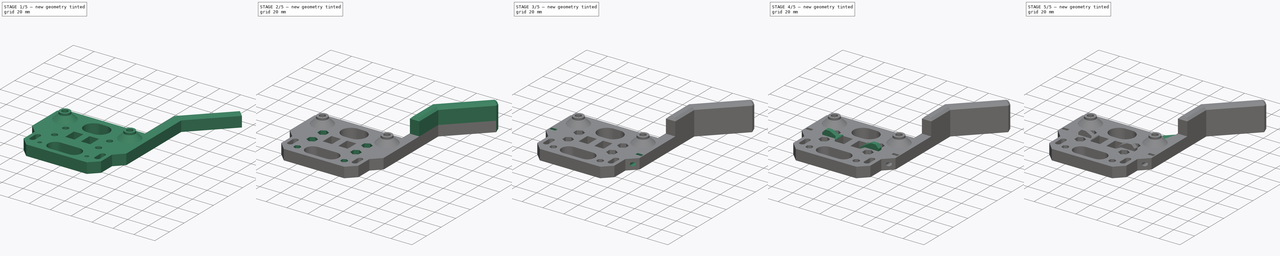
[diagram: build sequence overview — one tinted view per stage of 5, left to right]
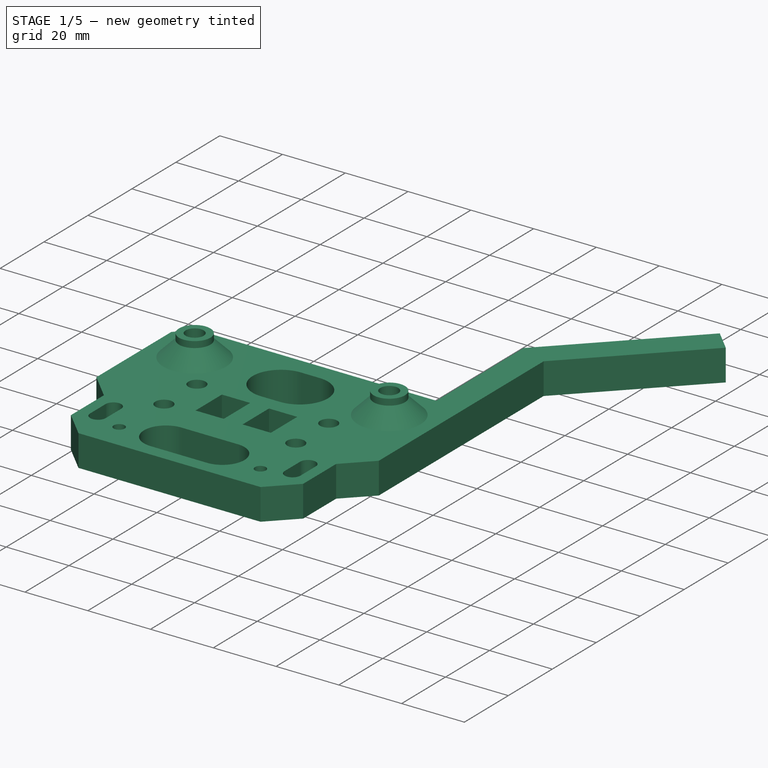
[diagram: stage 1 of 5 — iso view after this stage's code; geometry added in this stage tinted green]
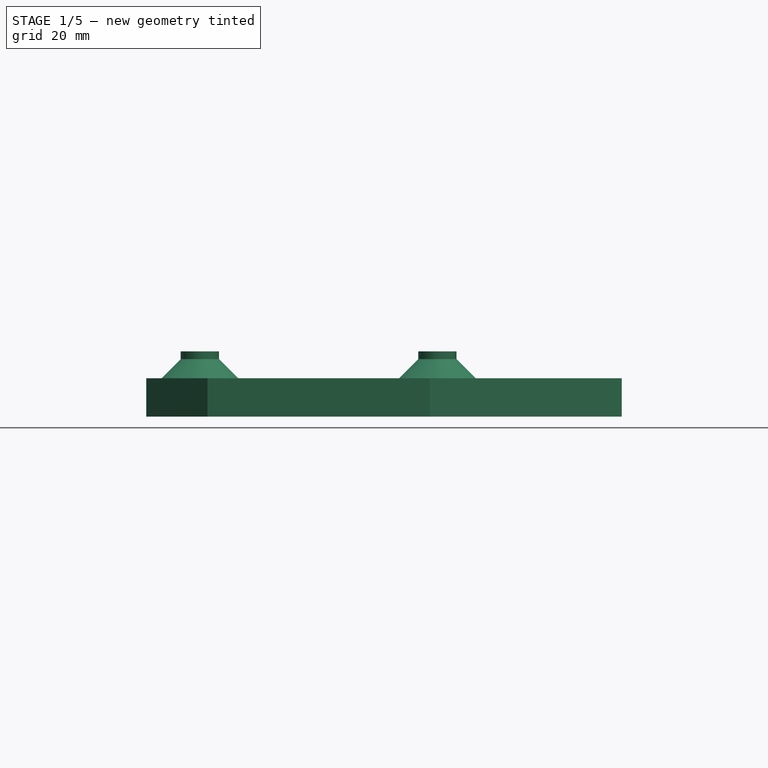
[diagram: stage 1 of 5 — front view after this stage's code; geometry added in this stage tinted green]
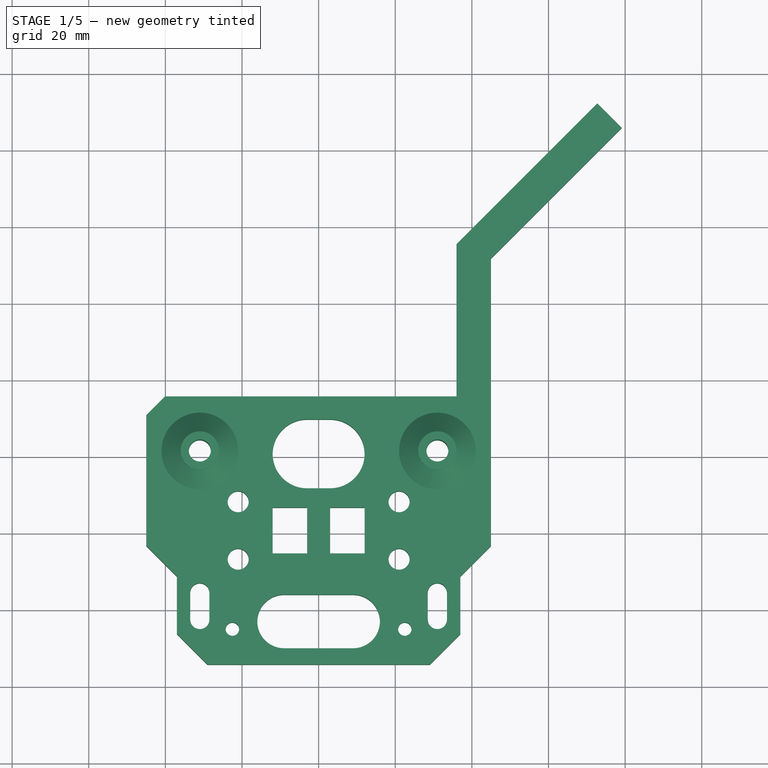
[diagram: stage 1 of 5 — top view after this stage's code; geometry added in this stage tinted green]
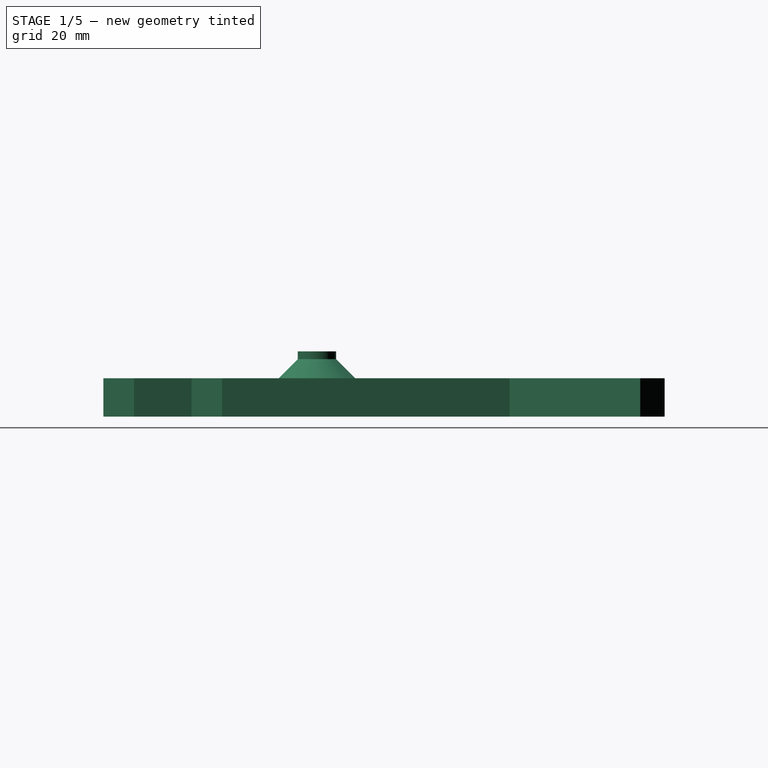
[diagram: stage 1 of 5 — right view after this stage's code; geometry added in this stage tinted green]
FCSTD DOCUMENT  (FreeCAD 0.19R24291 (Git))
Label: FDM-0012_x-gantry-back
License: All rights reserved
LicenseURL: http://en.wikipedia.org/wiki/All_rights_reserved
objects: Sketcher::SketchObject×11, PartDesign::Pocket×7, PartDesign::Chamfer×6, PartDesign::Plane×5, PartDesign::Pad×4, PartDesign::Fillet×2, Part::Part2DObjectPython×1, PartDesign::Hole×1, PartDesign::Body×1
note: 58 computed .brp shape members not serialized (recipe doc carries the construction recipe); baked Part::Feature solids carry a one-line shape summary decoded from their .brp

FEATURE [Sketcher::SketchObject] Sketch  label="Base"
  FullyConstrained = true
  MapMode = 5
  Support = -> [XY_Plane]
  sketch-geometry (57):
    g0: LineSegment StartX=0 StartY=0 StartZ=0 EndX=0 EndY=41.5 EndZ=0
    g1: LineSegment StartX=-31 StartY=41.5 StartZ=0 EndX=31 EndY=41.5 EndZ=0
    g2: Circle CenterX=-31 CenterY=41.5 CenterZ=0 NormalX=0 NormalY=0 NormalZ=1 AngleXU=0 Radius=2.875
    g3: Circle CenterX=31 CenterY=41.5 CenterZ=0 NormalX=0 NormalY=0 NormalZ=1 AngleXU=0 Radius=2.875
    g4: ArcOfCircle CenterX=-31 CenterY=4.5 CenterZ=0 NormalX=0 NormalY=0 NormalZ=1 AngleXU=0 Radius=2.5 StartAngle=-9e-16 EndAngle=3.14159
    g5: ArcOfCircle CenterX=-31 CenterY=-2.5 CenterZ=0 NormalX=0 NormalY=0 NormalZ=1 AngleXU=0 Radius=2.5 StartAngle=3.14159 EndAngle=6.28319
    g6: LineSegment StartX=-33.5 StartY=4.5 StartZ=0 EndX=-33.5 EndY=-2.5 EndZ=0
    g7: LineSegment StartX=-28.5 StartY=4.5 StartZ=0 EndX=-28.5 EndY=-2.5 EndZ=0
    g8: Circle CenterX=-31 CenterY=41.5 CenterZ=0 NormalX=0 NormalY=0 NormalZ=1 AngleXU=0 Radius=12.5
    g9: Circle CenterX=31 CenterY=41.5 CenterZ=0 NormalX=0 NormalY=0 NormalZ=1 AngleXU=0 Radius=12.5
    g10: LineSegment StartX=-45 StartY=55.75 StartZ=0 EndX=45 EndY=55.75 EndZ=0
    g11: LineSegment StartX=45 StartY=55.75 StartZ=0 EndX=45 EndY=16.75 EndZ=0
    g12: LineSegment StartX=-45 StartY=16.75 StartZ=0 EndX=-45 EndY=55.75 EndZ=0
    g13: LineSegment StartX=-21 StartY=28.25 StartZ=0 EndX=-21 EndY=13.25 EndZ=0
    g14: LineSegment StartX=-12 StartY=26.75 StartZ=0 EndX=-3 EndY=26.75 EndZ=0
    g15: LineSegment StartX=-3 StartY=26.75 StartZ=0 EndX=-3 EndY=14.75 EndZ=0
    g16: LineSegment StartX=-3 StartY=14.75 StartZ=0 EndX=-12 EndY=14.75 EndZ=0
    g17: LineSegment StartX=-12 StartY=14.75 StartZ=0 EndX=-12 EndY=26.75 EndZ=0
    g18: Circle CenterX=-21 CenterY=28.25 CenterZ=0 NormalX=0 NormalY=0 NormalZ=1 AngleXU=0 Radius=2.75
    g19: Circle CenterX=-21 CenterY=13.25 CenterZ=0 NormalX=0 NormalY=0 NormalZ=1 AngleXU=0 Radius=2.75
    g20: LineSegment StartX=-21 StartY=20.75 StartZ=0 EndX=21 EndY=20.75 EndZ=0
    g21: LineSegment StartX=21 StartY=28.25 StartZ=0 EndX=21 EndY=13.25 EndZ=0
    g22: Circle CenterX=21 CenterY=28.25 CenterZ=0 NormalX=0 NormalY=0 NormalZ=1 AngleXU=0 Radius=2.75
    g23: Circle CenterX=21 CenterY=13.25 CenterZ=0 NormalX=0 NormalY=0 NormalZ=1 AngleXU=0 Radius=2.75
    g24: LineSegment StartX=3 StartY=26.75 StartZ=0 EndX=12 EndY=26.75 EndZ=0
    g25: LineSegment StartX=12 StartY=26.75 StartZ=0 EndX=12 EndY=14.75 EndZ=0
    g26: LineSegment StartX=12 StartY=14.75 StartZ=0 EndX=3 EndY=14.75 EndZ=0
    g27: LineSegment StartX=3 StartY=14.75 StartZ=0 EndX=3 EndY=26.75 EndZ=0
    g28: LineSegment StartX=-22.5 StartY=-5 StartZ=0 EndX=22.5 EndY=-5 EndZ=0
    g29: Circle CenterX=-22.5 CenterY=-5 CenterZ=0 NormalX=0 NormalY=0 NormalZ=1 AngleXU=0 Radius=1.75
    g30: Circle CenterX=22.5 CenterY=-5 CenterZ=0 NormalX=0 NormalY=0 NormalZ=1 AngleXU=0 Radius=1.75
    g31: LineSegment StartX=45 StartY=55.75 StartZ=0 EndX=45 EndY=16.75 EndZ=0
    g32: ArcOfCircle CenterX=31 CenterY=4.5 CenterZ=0 NormalX=0 NormalY=0 NormalZ=1 AngleXU=0 Radius=2.5 StartAngle=0 EndAngle=3.14159
    g33: ArcOfCircle CenterX=31 CenterY=-2.5 CenterZ=0 NormalX=0 NormalY=0 NormalZ=1 AngleXU=0 Radius=2.5 StartAngle=3.14159 EndAngle=6.28319
    g34: LineSegment StartX=28.5 StartY=4.5 StartZ=0 EndX=28.5 EndY=-2.5 EndZ=0
    g35: LineSegment StartX=33.5 StartY=4.5 StartZ=0 EndX=33.5 EndY=-2.5 EndZ=0
    g36: LineSegment StartX=37 StartY=8.75 StartZ=0 EndX=37 EndY=-6.25 EndZ=0
    g37: LineSegment StartX=37 StartY=-6.25 StartZ=0 EndX=29 EndY=-14.25 EndZ=0
    g38: LineSegment StartX=-29 StartY=-14.25 StartZ=0 EndX=-37 EndY=-6.25 EndZ=0
    g39: LineSegment StartX=-37 StartY=-6.25 StartZ=0 EndX=-37 EndY=8.75 EndZ=0
    g40: LineSegment StartX=-37 StartY=8.75 StartZ=0 EndX=-45 EndY=16.75 EndZ=0
    g41: LineSegment StartX=37 StartY=8.75 StartZ=0 EndX=45 EndY=16.75 EndZ=0
    g42: LineSegment StartX=-29 StartY=-14.25 StartZ=0 EndX=29 EndY=-14.25 EndZ=0
    g43: ArcOfCircle CenterX=-9 CenterY=-3 CenterZ=0 NormalX=0 NormalY=0 NormalZ=1 AngleXU=0 Radius=7 StartAngle=1.5708 EndAngle=4.71239
    g44: ArcOfCircle CenterX=9 CenterY=-3 CenterZ=0 NormalX=0 NormalY=0 NormalZ=1 AngleXU=0 Radius=7 StartAngle=4.71239 EndAngle=7.85398
    g45: LineSegment StartX=-9 StartY=-10 StartZ=0 EndX=9 EndY=-10 EndZ=0
    g46: LineSegment StartX=-9 StartY=4 StartZ=0 EndX=9 EndY=4 EndZ=0
    g47: ArcOfCircle CenterX=-3 CenterY=40.75 CenterZ=0 NormalX=0 NormalY=0 NormalZ=1 AngleXU=0 Radius=9 StartAngle=1.5708 EndAngle=4.71239
    g48: ArcOfCircle CenterX=3 CenterY=40.75 CenterZ=0 NormalX=0 NormalY=0 NormalZ=1 AngleXU=0 Radius=9 StartAngle=4.71239 EndAngle=7.85398
    g49: LineSegment StartX=-3 StartY=31.75 StartZ=0 EndX=3 EndY=31.75 EndZ=0
    g50: LineSegment StartX=-3 StartY=49.75 StartZ=0 EndX=3 EndY=49.75 EndZ=0
    g51: LineSegment StartX=36 StartY=55.75 StartZ=0 EndX=36 EndY=95.4779 EndZ=0
    g52: LineSegment StartX=36 StartY=95.4779 StartZ=0 EndX=72.7696 EndY=132.247 EndZ=0
    g53: LineSegment StartX=72.7696 StartY=132.247 StartZ=0 EndX=79.1335 EndY=125.884 EndZ=0
    g54: LineSegment StartX=79.1335 StartY=125.884 StartZ=0 EndX=45 EndY=91.75 EndZ=0
    g55: LineSegment StartX=45 StartY=91.75 StartZ=0 EndX=45 EndY=55.75 EndZ=0
    g56: LineSegment StartX=36 StartY=55.75 StartZ=0 EndX=-45 EndY=55.75 EndZ=0
  constraints (147):
    c: Coincident(g0,g-1)
    c: PointOnObject(g0,g1)
    c: Symmetric(g1,g1,g0)
    c: DistanceY(g0,g0) = 41.5
    c: DistanceX(g1,g1) = 62
    c: Coincident(g2,g1)
    c: Coincident(g3,g1)
    c: Tangent(g4,g7)
    c: Tangent(g4,g6)
    c: Tangent(g6,g5)
    c: Tangent(g7,g5)
    c: Vertical(g6)
    c: Coincident(g8,g2)
    c: Coincident(g9,g3)
    c: Diameter(g4) = 5
    c: DistanceY(g5,g4) = 7
    c: Diameter(g3) = 5.75
    c: Diameter(g2) = 5.75
    c: Diameter(g9) = 25
    c: Diameter(g8) = 25
    c: Coincident(g10,g11)
    c: Vertical(g11)
    c: Coincident(g12,g10)
    c: Vertical(g12)
    c: Symmetric(g10,g10,g-2)
    c: Equal(g11,g12)
    c: DistanceX(g10,g10) = 90
    c: DistanceY(g3,g10) = 14.25
    c: DistanceY(g13,g13) = 15
    c: Coincident(g14,g15)
    c: Coincident(g15,g16)
    c: Coincident(g16,g17)
    c: Coincident(g17,g14)
    c: Horizontal(g14)
    c: Horizontal(g16)
    c: Vertical(g15)
    c: DistanceX(g14,g14) = 9
    c: DistanceY(g17,g17) = 12
    c: Coincident(g18,g13)
    c: Coincident(g19,g13)
    c: Diameter(g18) = 5.5
    c: Diameter(g19) = 5.5
    c: PointOnObject(g20,g13)
    c: Symmetric(g20,g20,g-2)
    c: Symmetric(g18,g19,g20)
    c: Symmetric(g14,g16,g20)
    c: PointOnObject(g20,g21)
    c: Symmetric(g21,g21,g20)
    c: DistanceY(g21,g21) = 15
    c: Coincident(g23,g21)
    c: Diameter(g22) = 5.5
    c: Diameter(g23) = 5.5
    c: Symmetric(g0,g-1,g20)
    c: Distance(g14,g0) = 3
    c: Distance(g18,g0) = 21
    c: Coincident(g24,g25)
    c: Coincident(g25,g26)
    c: Coincident(g26,g27)
    c: Coincident(g27,g24)
    c: Horizontal(g24)
    c: Horizontal(g26)
    c: Vertical(g25)
    c: DistanceX(g24,g24) = 9
    c: DistanceY(g27,g27) = 12
    c: DistanceX(g-1,g24) = 3
    c: Symmetric(g24,g26,g20)
    c: Symmetric(g28,g28,g-2)
    c: DistanceY(g28,g-1) = 5
    c: DistanceX(g28,g28) = 45
    c: Coincident(g29,g28)
    c: Coincident(g30,g28)
    c: Diameter(g30) = 3.5
    c: DistanceY(g0,g4) = 4.5
    c: Vertical(g5,g4)
    c: Vertical(g4,g2)
    c: Tangent(g32,g35)
    c: Tangent(g32,g34)
    c: Tangent(g34,g33)
    c: Tangent(g35,g33)
    c: Vertical(g34)
    c: Equal(g4,g32) = 5
    c: Vertical(g33,g32)
    c: Horizontal(g32,g4)
    c: Vertical(g32,g3)
    c: Horizontal(g33,g5)
    c: Vertical(g36)
    c: Coincident(g37,g36)
    c: Coincident(g39,g38)
    c: Vertical(g39)
    c: Coincident(g40,g39)
    c: Coincident(g41,g36)
    c: Horizontal(g41,g40)
    c: Horizontal(g36,g39)
    c: DistanceX(g39,g36) = 74
    c: DistanceY(g37,g31) = 70
    c: Coincident(g42,g38)
    c: Coincident(g42,g37)
    c: Horizontal(g42)
    c: Angle(g36,g37) = 2.35619
    c: Angle(g38,g39) = 2.35619
    c: Horizontal(g38,g36)
    c: Coincident(g40,g12)
    c: Coincident(g31,g41)
    c: Vertical(g31)
    c: Angle(g31,g41) = 2.35619
    c: Angle(g40,g12) = 2.35619
    c: DistanceY(g37,g36) = 8
    c: DistanceY(g36,g36) = 15
    c: Equal(g29,g30)
    c: Tangent(g43,g46) = 1.5708
    c: Tangent(g43,g45) = -1.5708
    c: Tangent(g45,g44) = -1.5708
    c: Tangent(g46,g44) = 1.5708
    c: Horizontal(g45)
    c: Symmetric(g43,g44,g0)
    c: Diameter(g44) = 14
    c: DistanceX(g46,g46) = 18
    c: DistanceY(g44,g0) = 3
    c: Vertical(g22,g23)
    c: Horizontal(g22,g18)
    c: Tangent(g47,g50) = 1.5708
    c: Tangent(g47,g49) = -1.5708
    c: Tangent(g49,g48) = -1.5708
    c: Tangent(g50,g48) = 1.5708
    c: Horizontal(g49)
    c: Symmetric(g47,g48,g-2)
    c: Vertical(g14,g47)
    c: Radius(g48) = 9
    c: DistanceY(g48,g31) = 6
    c: Coincident(g52,g51)
    c: Coincident(g53,g52)
    c: Coincident(g54,g53)
    c: Coincident(g55,g54)
    c: Vertical(g55)
    c: Distance(g53) = 9
    c: Perpendicular(g53,g52)
    c: Angle(g51,g52) = 2.35619
    c: Parallel(g54,g52)
    c: Distance(g52) = 52
    c: DistanceY(g55,g55) = 36
    c: Horizontal(g56)
    c: Vertical(g51)
    c: DistanceX(g51,g55) = 9
    c: Coincident(g56,g12)
    c: Coincident(g10,g31)
    c: Coincident(g31,g55)
    c: Coincident(g51,g56)
FEATURE [PartDesign::Pad] Pad
  AllowMultiFace = false
  Direction = (1,1,1)
  Length = 10
  Length2 = 100
  Profile = -> Sketch
  Refine = true
  Type = 0
FEATURE [PartDesign::Plane] DatumPlane
  Length = 60
  MapMode = 5
  Placement = pos=(0,0,10) rot=(0,0,1;0rad)
  ResizeMode = 0
  Support = -> [Pad]
  Width = 60
FEATURE [Sketcher::SketchObject] Sketch001  label="WheelSpacers"
  FullyConstrained = true
  MapMode = 5
  Placement = pos=(0,0,10) rot=(0,0,1;0rad)
  Support = -> [DatumPlane]
  sketch-geometry (4):
    g0: Circle CenterX=-31 CenterY=41.5 CenterZ=0 NormalX=0 NormalY=0 NormalZ=1 AngleXU=0 Radius=2.875
    g1: Circle CenterX=-31 CenterY=41.5 CenterZ=0 NormalX=0 NormalY=0 NormalZ=1 AngleXU=0 Radius=5
    g2: Circle CenterX=31 CenterY=41.5 CenterZ=0 NormalX=0 NormalY=0 NormalZ=1 AngleXU=0 Radius=2.875
    g3: Circle CenterX=31 CenterY=41.5 CenterZ=0 NormalX=0 NormalY=0 NormalZ=1 AngleXU=0 Radius=5
  constraints (10):
    c: Coincident(g1,g0)
    c: Coincident(g3,g2)
    c: Diameter(g2) = 5.75
    c: Diameter(g3) = 10
    c: Diameter(g0) = 5.75
    c: Diameter(g1) = 10
    c: DistanceX(g0,g-1) = 31
    c: DistanceX(g-1,g2) = 31
    c: DistanceY(g-1,g0) = 41.5
    c: DistanceY(g-1,g2) = 41.5
FEATURE [PartDesign::Pad] Pad001
  AllowMultiFace = false
  BaseFeature = -> Pad
  Direction = (1,1,1)
  Length = 7
  Length2 = 100
  Profile = -> Sketch001
  Refine = true
  Type = 0
FEATURE [PartDesign::Chamfer] Chamfer
  Angle = 45
  Base = -> Pad001 [Edge96,Edge86]
  BaseFeature = -> Pad001
  ChamferType = 0
  FlipDirection = false
  Size = 5
  Size2 = 1
  SupportTransform = false
FEATURE [PartDesign::Chamfer] Chamfer001
  Angle = 45
  Base = -> Chamfer [Edge62]
  BaseFeature = -> Chamfer
  ChamferType = 0
  FlipDirection = false
  Size = 4.9
  Size2 = 1
  SupportTransform = false
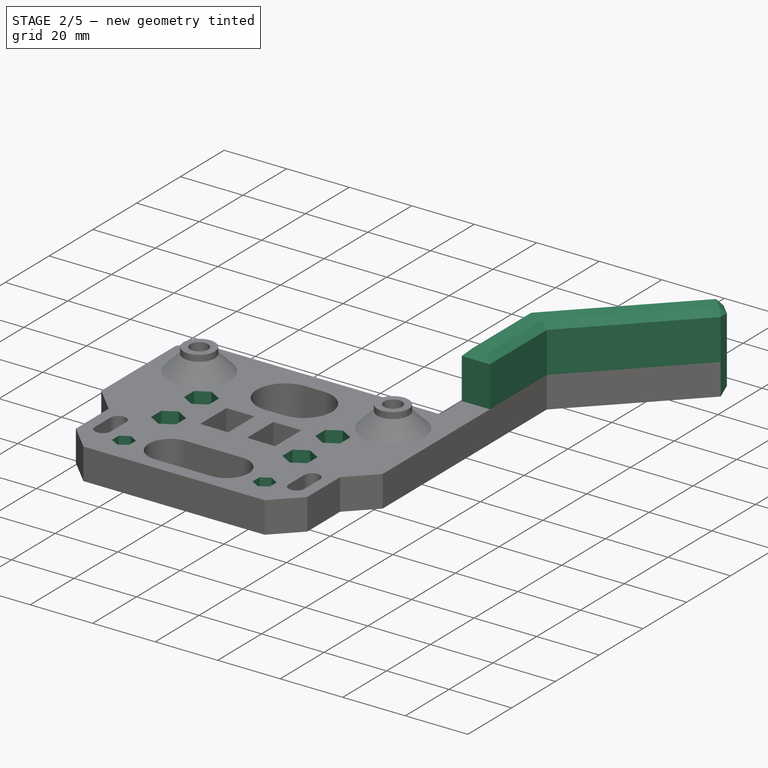
[diagram: stage 2 of 5 — iso view after this stage's code; geometry added in this stage tinted green]
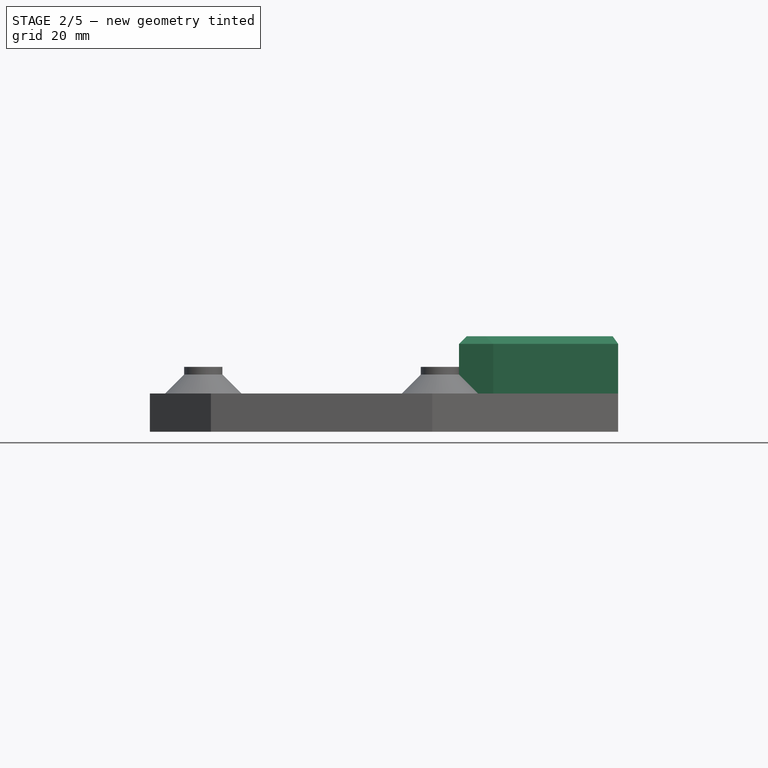
[diagram: stage 2 of 5 — front view after this stage's code; geometry added in this stage tinted green]
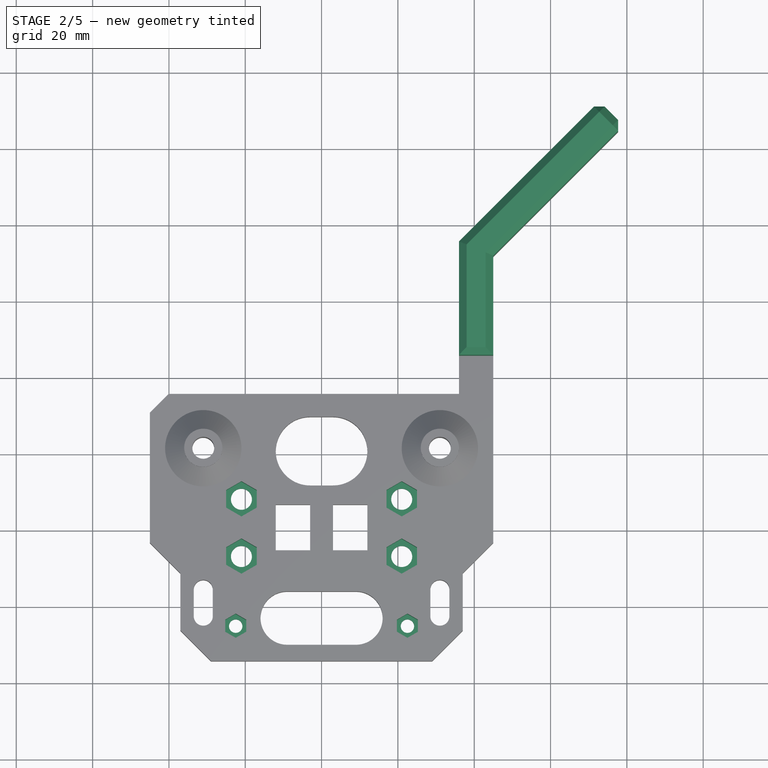
[diagram: stage 2 of 5 — top view after this stage's code; geometry added in this stage tinted green]
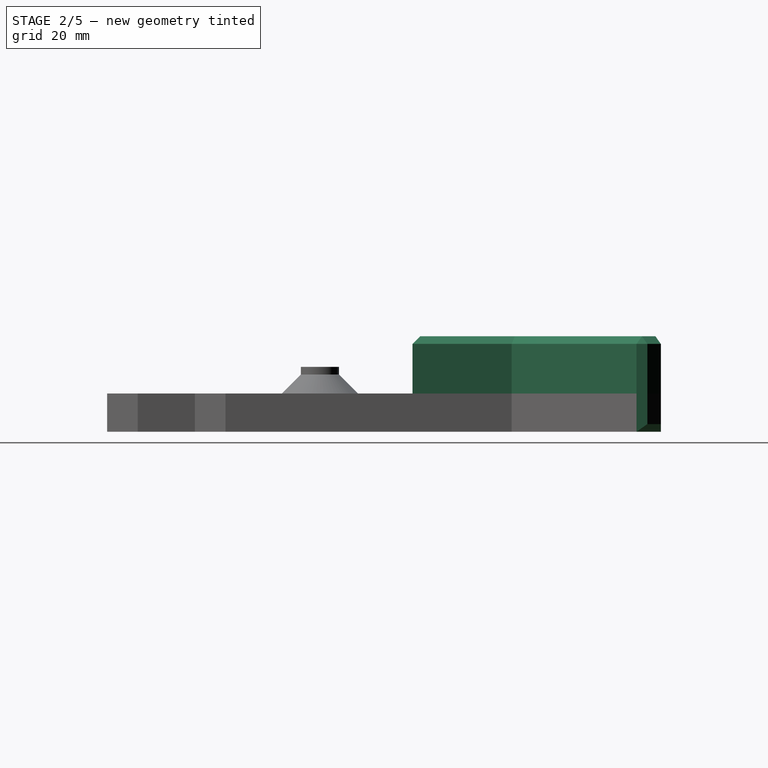
[diagram: stage 2 of 5 — right view after this stage's code; geometry added in this stage tinted green]
FEATURE [Sketcher::SketchObject] Sketch002  label="M5Nuts"
  FullyConstrained = true
  MapMode = 5
  Placement = pos=(0,0,10) rot=(0,0,1;0rad)
  Support = -> [DatumPlane]
  sketch-geometry (42):
    g0: LineSegment StartX=-17 StartY=25.9406 StartZ=0 EndX=-17 EndY=30.5594 EndZ=0
    g1: LineSegment StartX=-17 StartY=30.5594 StartZ=0 EndX=-21 EndY=32.8688 EndZ=0
    g2: LineSegment StartX=-21 StartY=32.8688 StartZ=0 EndX=-25 EndY=30.5594 EndZ=0
    g3: LineSegment StartX=-25 StartY=30.5594 StartZ=0 EndX=-25 EndY=25.9406 EndZ=0
    g4: LineSegment StartX=-25 StartY=25.9406 StartZ=0 EndX=-21 EndY=23.6312 EndZ=0
    g5: LineSegment StartX=-21 StartY=23.6312 StartZ=0 EndX=-17 EndY=25.9406 EndZ=0
    g6: Circle CenterX=-21 CenterY=28.25 CenterZ=0 NormalX=0 NormalY=0 NormalZ=1 AngleXU=0 Radius=4.6188
    g7: LineSegment StartX=-17 StartY=10.9406 StartZ=0 EndX=-17 EndY=15.5594 EndZ=0
    g8: LineSegment StartX=-17 StartY=15.5594 StartZ=0 EndX=-21 EndY=17.8688 EndZ=0
    g9: LineSegment StartX=-21 StartY=17.8688 StartZ=0 EndX=-25 EndY=15.5594 EndZ=0
    g10: LineSegment StartX=-25 StartY=15.5594 StartZ=0 EndX=-25 EndY=10.9406 EndZ=0
    g11: LineSegment StartX=-25 StartY=10.9406 StartZ=0 EndX=-21 EndY=8.6312 EndZ=0
    g12: LineSegment StartX=-21 StartY=8.6312 StartZ=0 EndX=-17 EndY=10.9406 EndZ=0
    g13: Circle CenterX=-21 CenterY=13.25 CenterZ=0 NormalX=0 NormalY=0 NormalZ=1 AngleXU=0 Radius=4.6188
    g14: LineSegment StartX=-19.75 StartY=-6.58771 StartZ=0 EndX=-19.75 EndY=-3.41229 EndZ=0
    g15: LineSegment StartX=-19.75 StartY=-3.41229 StartZ=0 EndX=-22.5 EndY=-1.82457 EndZ=0
    g16: LineSegment StartX=-22.5 StartY=-1.82457 StartZ=0 EndX=-25.25 EndY=-3.41229 EndZ=0
    g17: LineSegment StartX=-25.25 StartY=-3.41229 StartZ=0 EndX=-25.25 EndY=-6.58771 EndZ=0
    g18: LineSegment StartX=-25.25 StartY=-6.58771 StartZ=0 EndX=-22.5 EndY=-8.17543 EndZ=0
    g19: LineSegment StartX=-22.5 StartY=-8.17543 StartZ=0 EndX=-19.75 EndY=-6.58771 EndZ=0
    g20: Circle CenterX=-22.5 CenterY=-5 CenterZ=0 NormalX=0 NormalY=0 NormalZ=1 AngleXU=0 Radius=3.17543
    g21: LineSegment StartX=25.25 StartY=-6.58771 StartZ=0 EndX=25.25 EndY=-3.41229 EndZ=0
    g22: LineSegment StartX=25.25 StartY=-3.41229 StartZ=0 EndX=22.5 EndY=-1.82457 EndZ=0
    g23: LineSegment StartX=22.5 StartY=-1.82457 StartZ=0 EndX=19.75 EndY=-3.41229 EndZ=0
    g24: LineSegment StartX=19.75 StartY=-3.41229 StartZ=0 EndX=19.75 EndY=-6.58771 EndZ=0
    g25: LineSegment StartX=19.75 StartY=-6.58771 StartZ=0 EndX=22.5 EndY=-8.17543 EndZ=0
    g26: LineSegment StartX=22.5 StartY=-8.17543 StartZ=0 EndX=25.25 EndY=-6.58771 EndZ=0
    g27: Circle CenterX=22.5 CenterY=-5 CenterZ=0 NormalX=0 NormalY=0 NormalZ=1 AngleXU=0 Radius=3.17543
    g28: LineSegment StartX=25 StartY=10.9406 StartZ=0 EndX=25 EndY=15.5594 EndZ=0
    g29: LineSegment StartX=25 StartY=15.5594 StartZ=0 EndX=21 EndY=17.8688 EndZ=0
    g30: LineSegment StartX=21 StartY=17.8688 StartZ=0 EndX=17 EndY=15.5594 EndZ=0
    g31: LineSegment StartX=17 StartY=15.5594 StartZ=0 EndX=17 EndY=10.9406 EndZ=0
    g32: LineSegment StartX=17 StartY=10.9406 StartZ=0 EndX=21 EndY=8.6312 EndZ=0
    g33: LineSegment StartX=21 StartY=8.6312 StartZ=0 EndX=25 EndY=10.9406 EndZ=0
    g34: Circle CenterX=21 CenterY=13.25 CenterZ=0 NormalX=0 NormalY=0 NormalZ=1 AngleXU=0 Radius=4.6188
    g35: LineSegment StartX=25 StartY=25.9406 StartZ=0 EndX=25 EndY=30.5594 EndZ=0
    g36: LineSegment StartX=25 StartY=30.5594 StartZ=0 EndX=21 EndY=32.8688 EndZ=0
    g37: LineSegment StartX=21 StartY=32.8688 StartZ=0 EndX=17 EndY=30.5594 EndZ=0
    g38: LineSegment StartX=17 StartY=30.5594 StartZ=0 EndX=17 EndY=25.9406 EndZ=0
    g39: LineSegment StartX=17 StartY=25.9406 StartZ=0 EndX=21 EndY=23.6312 EndZ=0
    g40: LineSegment StartX=21 StartY=23.6312 StartZ=0 EndX=25 EndY=25.9406 EndZ=0
    g41: Circle CenterX=21 CenterY=28.25 CenterZ=0 NormalX=0 NormalY=0 NormalZ=1 AngleXU=0 Radius=4.6188
  constraints (102):
    c: Coincident(g0,g1)
    c: Coincident(g1,g2)
    c: Coincident(g2,g3)
    c: Coincident(g3,g4)
    c: Coincident(g4,g5)
    c: Coincident(g5,g0)
    c: Equal(g0, g1-g5) x5
    c: PointOnObject(g0,g6)
    c: PointOnObject(g1,g6)
    c: PointOnObject(g2,g6)
    c: PointOnObject(g3,g6)
    c: PointOnObject(g4,g6)
    c: PointOnObject(g5,g6)
    c: Coincident(g7,g8)
    c: Coincident(g8,g9)
    c: Coincident(g9,g10)
    c: Coincident(g10,g11)
    c: Coincident(g11,g12)
    c: Coincident(g12,g7)
    c: Equal(g7, g8-g12) x5
    c: PointOnObject(g7,g13)
    c: PointOnObject(g8,g13)
    c: PointOnObject(g9,g13)
    c: PointOnObject(g10,g13)
    c: PointOnObject(g11,g13)
    c: PointOnObject(g12,g13)
    c: Coincident(g14,g15)
    c: Coincident(g15,g16)
    c: Coincident(g16,g17)
    c: Coincident(g17,g18)
    c: Coincident(g18,g19)
    c: Coincident(g19,g14)
    c: Equal(g14, g15-g19) x5
    c: PointOnObject(g14,g20)
    c: PointOnObject(g15,g20)
    c: PointOnObject(g16,g20)
    c: PointOnObject(g17,g20)
    c: PointOnObject(g18,g20)
    c: PointOnObject(g19,g20)
    c: Coincident(g21,g22)
    c: Coincident(g22,g23)
    c: Coincident(g23,g24)
    c: Coincident(g24,g25)
    c: Coincident(g25,g26)
    c: Coincident(g26,g21)
    c: Equal(g21, g22-g26) x5
    c: PointOnObject(g21,g27)
    c: PointOnObject(g22,g27)
    c: PointOnObject(g23,g27)
    c: PointOnObject(g24,g27)
    c: PointOnObject(g25,g27)
    c: PointOnObject(g26,g27)
    c: Coincident(g28,g29)
    c: Coincident(g29,g30)
    c: Coincident(g30,g31)
    c: Coincident(g31,g32)
    c: Coincident(g32,g33)
    c: Coincident(g33,g28)
    c: Equal(g28, g29-g33) x5
    c: PointOnObject(g28,g34)
    c: PointOnObject(g29,g34)
    c: PointOnObject(g30,g34)
    c: PointOnObject(g31,g34)
    c: PointOnObject(g32,g34)
    c: PointOnObject(g33,g34)
    c: Coincident(g35,g36)
    c: Coincident(g36,g37)
    c: Coincident(g37,g38)
    c: Coincident(g38,g39)
    c: Coincident(g39,g40)
    c: Coincident(g40,g35)
    c: Equal(g35, g36-g40) x5
    c: PointOnObject(g35,g41)
    c: PointOnObject(g36,g41)
    c: PointOnObject(g37,g41)
    c: PointOnObject(g38,g41)
    c: PointOnObject(g39,g41)
    c: PointOnObject(g40,g41)
    c: Vertical(g10)
    c: Vertical(g3)
    c: Vertical(g17)
    c: Vertical(g24)
    c: Vertical(g31)
    c: Vertical(g38)
    c: DistanceX(g20,g-1) = 22.5
    c: DistanceX(g-1,g27) = 22.5
    c: DistanceX(g-1,g34) = 21
    c: DistanceX(g-1,g41) = 21
    c: DistanceX(g13,g-1) = 21
    c: DistanceX(g6,g-1) = 21
    c: DistanceY(g-1,g13) = 13.25
    c: DistanceY(g-1,g34) = 13.25
    c: DistanceY(g-1,g41) = 28.25
    c: DistanceY(g-1,g6) = 28.25
    c: DistanceY(g20,g-1) = 5
    c: DistanceY(g27,g-1) = 5
    c: DistanceX(g2,g0) = 8
    c: Equal(g6,g13)
    c: Equal(g13,g34)
    c: Equal(g34,g41)
    c: DistanceX(g17,g14) = 5.5
    c: Equal(g20,g27)
FEATURE [PartDesign::Pocket] Pocket
  AllowMultiFace = false
  BaseFeature = -> Chamfer001
  Length = 7.5
  Length2 = 100
  Profile = -> Sketch002
  Refine = true
  Type = 0
FEATURE [PartDesign::Fillet] Fillet
  Base = -> Pocket [Edge199,Edge204]
  BaseFeature = -> Pocket
  Radius = 3.5
  SupportTransform = false
FEATURE [Sketcher::SketchObject] Sketch005  label="CableSupport"
  FullyConstrained = true
  MapMode = 5
  Placement = pos=(0,0,10) rot=(0,0,1;0rad)
  Support = -> [DatumPlane]
  sketch-geometry (6):
    g0: LineSegment StartX=45 StartY=91.75 StartZ=0 EndX=45 EndY=65.75 EndZ=0
    g1: LineSegment StartX=45 StartY=65.75 StartZ=0 EndX=36 EndY=65.75 EndZ=0
    g2: LineSegment StartX=36 StartY=65.75 StartZ=0 EndX=36 EndY=95.4779 EndZ=0
    g3: LineSegment StartX=36 StartY=95.4779 StartZ=0 EndX=72.7696 EndY=132.247 EndZ=0
    g4: LineSegment StartX=72.7696 StartY=132.247 StartZ=0 EndX=79.1335 EndY=125.884 EndZ=0
    g5: LineSegment StartX=79.1335 StartY=125.884 StartZ=0 EndX=45 EndY=91.75 EndZ=0
  constraints (18):
    c: Coincident(g0,g1)
    c: Coincident(g1,g2)
    c: Horizontal(g1)
    c: Vertical(g0)
    c: Vertical(g2)
    c: DistanceY(g-1,g1) = 65.75
    c: Coincident(g3,g2)
    c: Coincident(g4,g3)
    c: Coincident(g5,g4)
    c: Coincident(g5,g0)
    c: Parallel(g3,g5)
    c: Perpendicular(g3,g4)
    c: Distance(g4) = 9
    c: DistanceX(g1,g1) = 9
    c: DistanceY(g0,g0) = 26
    c: Angle(g0,g5) = 2.35619
    c: Distance(g3) = 52
    c: DistanceX(g-1,g1) = 36
FEATURE [PartDesign::Pad] Pad002
  AllowMultiFace = false
  BaseFeature = -> Fillet
  Direction = (1,1,1)
  Length = 15
  Length2 = 100
  Profile = -> Sketch005
  Type = 0
FEATURE [PartDesign::Chamfer] Chamfer002
  Angle = 45
  Base = -> Pad002 [Edge97,Edge277,Edge147,Edge273,Edge275,Edge276,Edge278,Edge284,Edge283]
  BaseFeature = -> Pad002
  ChamferType = 0
  FlipDirection = false
  Size = 2
  Size2 = 1
  SupportTransform = false
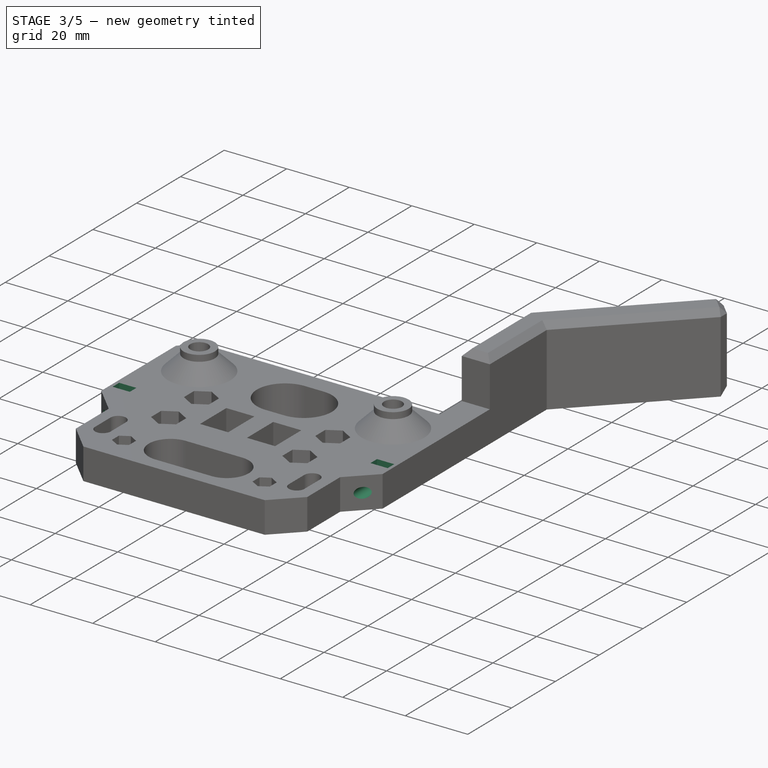
[diagram: stage 3 of 5 — iso view after this stage's code; geometry added in this stage tinted green]
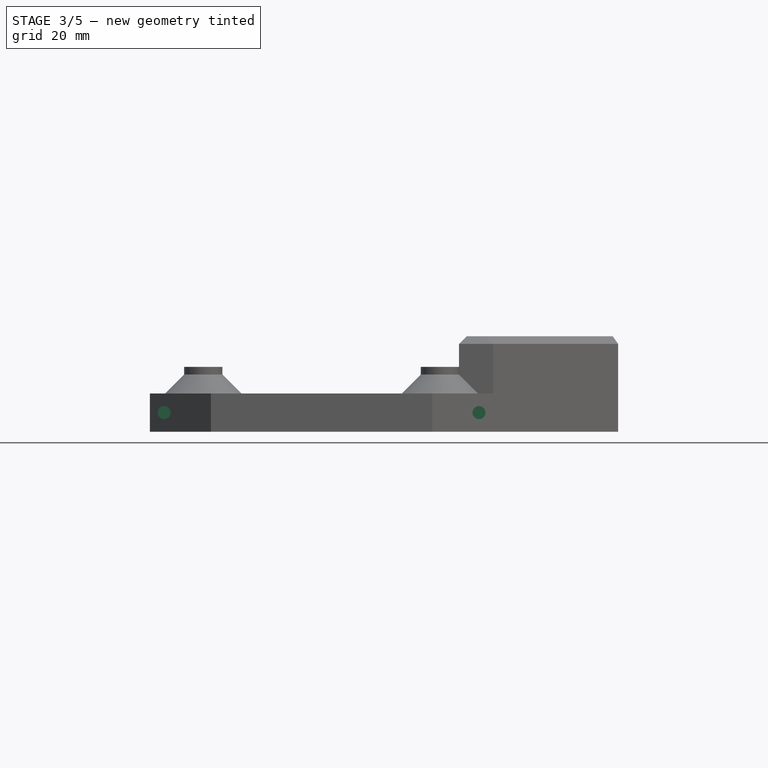
[diagram: stage 3 of 5 — front view after this stage's code; geometry added in this stage tinted green]
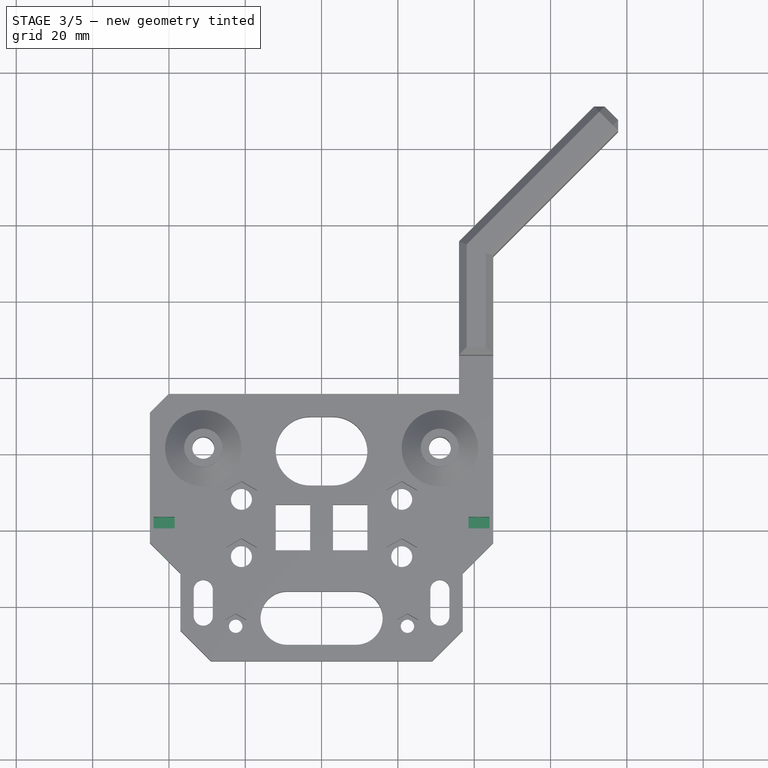
[diagram: stage 3 of 5 — top view after this stage's code; geometry added in this stage tinted green]
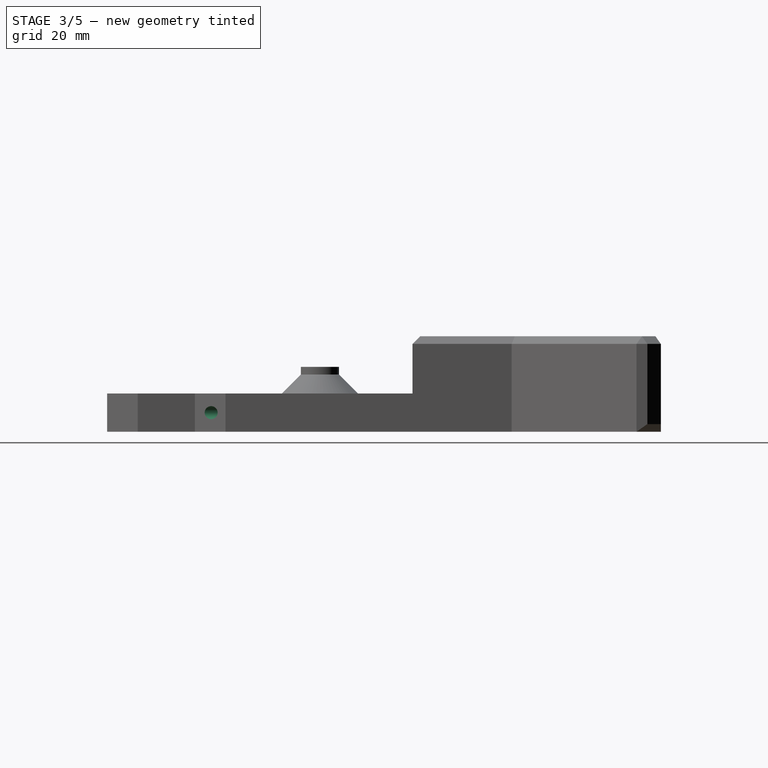
[diagram: stage 3 of 5 — right view after this stage's code; geometry added in this stage tinted green]
FEATURE [Sketcher::SketchObject] Sketch007  label="M5SlotCutOuts"
  FullyConstrained = true
  MapMode = 5
  Support = -> [XY_Plane]
  sketch-geometry (39):
    g0: LineSegment StartX=-27 StartY=39.1906 StartZ=0 EndX=-27 EndY=43.8094 EndZ=0
    g1: LineSegment StartX=-27 StartY=43.8094 StartZ=0 EndX=-31 EndY=46.1188 EndZ=0
    g2: LineSegment StartX=-31 StartY=46.1188 StartZ=0 EndX=-35 EndY=43.8094 EndZ=0
    g3: LineSegment StartX=-35 StartY=43.8094 StartZ=0 EndX=-35 EndY=39.1906 EndZ=0
    g4: LineSegment StartX=-35 StartY=39.1906 StartZ=0 EndX=-31 EndY=36.8812 EndZ=0
    g5: LineSegment StartX=-31 StartY=36.8812 StartZ=0 EndX=-27 EndY=39.1906 EndZ=0
    g6: Circle CenterX=-31 CenterY=41.5 CenterZ=0 NormalX=0 NormalY=0 NormalZ=1 AngleXU=0 Radius=4.6188
    g7: LineSegment StartX=35 StartY=39.1906 StartZ=0 EndX=35 EndY=43.8094 EndZ=0
    g8: LineSegment StartX=35 StartY=43.8094 StartZ=0 EndX=31 EndY=46.1188 EndZ=0
    g9: LineSegment StartX=31 StartY=46.1188 StartZ=0 EndX=27 EndY=43.8094 EndZ=0
    g10: LineSegment StartX=27 StartY=43.8094 StartZ=0 EndX=27 EndY=39.1906 EndZ=0
    g11: LineSegment StartX=27 StartY=39.1906 StartZ=0 EndX=31 EndY=36.8812 EndZ=0
    g12: LineSegment StartX=31 StartY=36.8812 StartZ=0 EndX=35 EndY=39.1906 EndZ=0
    g13: Circle CenterX=31 CenterY=41.5 CenterZ=0 NormalX=0 NormalY=0 NormalZ=1 AngleXU=0 Radius=4.6188
    g14: LineSegment StartX=-27 StartY=2.1906 StartZ=0 EndX=-27 EndY=6.8094 EndZ=0
    g15: LineSegment StartX=-27 StartY=6.8094 StartZ=0 EndX=-31 EndY=9.1188 EndZ=0
    g16: LineSegment StartX=-31 StartY=9.1188 StartZ=0 EndX=-35 EndY=6.8094 EndZ=0
    g17: LineSegment StartX=-35 StartY=6.8094 StartZ=0 EndX=-35 EndY=2.1906 EndZ=0
    g18: Circle CenterX=-31 CenterY=4.5 CenterZ=0 NormalX=0 NormalY=0 NormalZ=1 AngleXU=0 Radius=4.6188
    g19: LineSegment StartX=-27 StartY=-4.8094 StartZ=0 EndX=-27 EndY=-0.190599 EndZ=0
    g20: LineSegment StartX=-35 StartY=-0.190599 StartZ=0 EndX=-35 EndY=-4.8094 EndZ=0
    g21: LineSegment StartX=-35 StartY=-4.8094 StartZ=0 EndX=-31 EndY=-7.1188 EndZ=0
    g22: LineSegment StartX=-31 StartY=-7.1188 StartZ=0 EndX=-27 EndY=-4.8094 EndZ=0
    g23: Circle CenterX=-31 CenterY=-2.5 CenterZ=0 NormalX=0 NormalY=0 NormalZ=1 AngleXU=0 Radius=4.6188
    g24: LineSegment StartX=-31 StartY=41.5 StartZ=0 EndX=31 EndY=41.5 EndZ=0
    g25: LineSegment StartX=-35 StartY=2.1906 StartZ=0 EndX=-35 EndY=-0.190599 EndZ=0
    g26: LineSegment StartX=-27 StartY=2.1906 StartZ=0 EndX=-27 EndY=-0.190599 EndZ=0
    g27: LineSegment StartX=35 StartY=2.1906 StartZ=0 EndX=35 EndY=6.8094 EndZ=0
    g28: LineSegment StartX=35 StartY=6.8094 StartZ=0 EndX=31 EndY=9.1188 EndZ=0
    g29: LineSegment StartX=31 StartY=9.1188 StartZ=0 EndX=27 EndY=6.8094 EndZ=0
    g30: LineSegment StartX=27 StartY=6.8094 StartZ=0 EndX=27 EndY=2.1906 EndZ=0
    g31: Circle CenterX=31 CenterY=4.5 CenterZ=0 NormalX=0 NormalY=0 NormalZ=1 AngleXU=0 Radius=4.6188
    g32: LineSegment StartX=35 StartY=-4.8094 StartZ=0 EndX=35 EndY=-0.190599 EndZ=0
    g33: LineSegment StartX=27 StartY=-0.190599 StartZ=0 EndX=27 EndY=-4.8094 EndZ=0
    g34: LineSegment StartX=27 StartY=-4.8094 StartZ=0 EndX=31 EndY=-7.1188 EndZ=0
    g35: LineSegment StartX=31 StartY=-7.1188 StartZ=0 EndX=35 EndY=-4.8094 EndZ=0
    g36: Circle CenterX=31 CenterY=-2.5 CenterZ=0 NormalX=0 NormalY=0 NormalZ=1 AngleXU=0 Radius=4.6188
    g37: LineSegment StartX=27 StartY=2.1906 StartZ=0 EndX=27 EndY=-0.190599 EndZ=0
    g38: LineSegment StartX=35 StartY=2.1906 StartZ=0 EndX=35 EndY=-0.190599 EndZ=0
  constraints (107):
    c: Coincident(g0,g1)
    c: Coincident(g1,g2)
    c: Coincident(g2,g3)
    c: Coincident(g3,g4)
    c: Coincident(g4,g5)
    c: Coincident(g5,g0)
    c: Equal(g0, g1-g5) x5
    c: PointOnObject(g0,g6)
    c: PointOnObject(g1,g6)
    c: PointOnObject(g2,g6)
    c: PointOnObject(g3,g6)
    c: PointOnObject(g4,g6)
    c: PointOnObject(g5,g6)
    c: Coincident(g7,g8)
    c: Coincident(g8,g9)
    c: Coincident(g9,g10)
    c: Coincident(g10,g11)
    c: Coincident(g11,g12)
    c: Coincident(g12,g7)
    c: Equal(g7, g8-g12) x5
    c: PointOnObject(g7,g13)
    c: PointOnObject(g8,g13)
    c: PointOnObject(g9,g13)
    c: PointOnObject(g10,g13)
    c: PointOnObject(g11,g13)
    c: PointOnObject(g12,g13)
    c: Coincident(g14,g15)
    c: Coincident(g15,g16)
    c: Coincident(g16,g17)
    c: Equal(g14,g15)
    c: Equal(g14,g16)
    c: Equal(g14,g17)
    c: PointOnObject(g14,g18)
    c: PointOnObject(g15,g18)
    c: PointOnObject(g16,g18)
    c: PointOnObject(g17,g18)
    c: PointOnObject(g14,g18)
    c: Coincident(g20,g21)
    c: Coincident(g21,g22)
    c: Coincident(g22,g19)
    c: Equal(g19,g20)
    c: Equal(g19,g21)
    c: Equal(g19,g22)
    c: PointOnObject(g19,g23)
    c: PointOnObject(g20,g23)
    c: PointOnObject(g20,g23)
    c: PointOnObject(g21,g23)
    c: PointOnObject(g22,g23)
    c: Coincident(g24,g6)
    c: Coincident(g24,g13)
    c: Vertical(g0)
    c: Vertical(g10)
    c: Symmetric(g6,g13,g-2)
    c: DistanceX(g24,g24) = 62
    c: DistanceY(g-1,g6) = 41.5
    c: DistanceX(g2,g0) = 8
    c: DistanceX(g9,g7) = 8
    c: Vertical(g20)
    c: Vertical(g17)
    c: DistanceY(g-1,g18) = 4.5
    c: DistanceX(g16,g14) = 8
    c: DistanceX(g20,g19) = 8
    c: Vertical(g19)
    c: Vertical(g14)
    c: Coincident(g25,g17)
    c: Coincident(g25,g20)
    c: Coincident(g26,g14)
    c: Coincident(g26,g19)
    c: Vertical(g23,g18)
    c: Vertical(g18,g6)
    c: Coincident(g27,g28)
    c: Coincident(g28,g29)
    c: Coincident(g29,g30)
    c: Equal(g27,g28)
    c: Equal(g27,g29)
    c: Equal(g27,g30)
    c: PointOnObject(g27,g31)
    c: PointOnObject(g28,g31)
    c: PointOnObject(g29,g31)
    c: PointOnObject(g30,g31)
    c: PointOnObject(g27,g31)
    c: Coincident(g33,g34)
    c: Coincident(g34,g35)
    c: Coincident(g35,g32)
    c: Equal(g32,g33)
    c: Equal(g32,g34)
    c: Equal(g32,g35)
    c: PointOnObject(g32,g36)
    c: PointOnObject(g33,g36)
    c: PointOnObject(g33,g36)
    c: PointOnObject(g34,g36)
    c: PointOnObject(g35,g36)
    c: Vertical(g33)
    c: Vertical(g30)
    c: DistanceX(g29,g27) = 8
    c: DistanceX(g33,g32) = 8
    c: Vertical(g32)
    c: Vertical(g27)
    c: Coincident(g37,g30)
    c: Coincident(g37,g33)
    c: Coincident(g38,g27)
    c: Coincident(g38,g32)
    c: Vertical(g36,g31)
    c: Vertical(g31,g13)
    c: Horizontal(g15,g28)
    c: Horizontal(g21,g34)
    c: DistanceY(g23,g18) = 7
FEATURE [PartDesign::Pocket] Pocket004
  AllowMultiFace = false
  BaseFeature = -> Chamfer002
  Length = 4
  Length2 = 100
  Profile = -> Sketch007
  Reversed = true
  Type = 0
FEATURE [PartDesign::Plane] DatumPlane004  label="PartNumberPlane"
  Length = 93.7279
  MapMode = 5
  Placement = pos=(0,0,0) rot=(0.57735,0.57735,0.57735;2.0944rad)
  ResizeMode = 0
  Support = -> [YZ_Plane]
  Width = 62.7279
FEATURE [Part::Part2DObjectPython] ShapeString001  label="PN"  # Draft 2D object (typed FeaturePython)
  AttachmentOffset = pos=(56,3,18) rot=(0,1,0;1.5708rad)
  FontFile = ../../lib/fonts/RobotoMono-VariableFont_weight.ttf
  MapMode = 5
  Placement = pos=(18,56,3) rot=(0,0.707107,0.707107;3.14159rad)
  Size = 5
  String = FDM-0012-03
  Support = -> [YZ_Plane]
  Tracking = 0
FEATURE [PartDesign::Pocket] Pocket006
  BaseFeature = -> Pocket004
  Length = 1
  Length2 = 100
  Profile = -> ShapeString001
  Type = 0
FEATURE [Sketcher::SketchObject] Sketch008  label="Verticalholes"
  FullyConstrained = true
  MapMode = 5
  Placement = pos=(0,0,0) rot=(1,0,0;1.5708rad)
  Support = -> [XZ_Plane]
  sketch-geometry (2):
    g0: Circle CenterX=-41.25 CenterY=5 CenterZ=0 NormalX=0 NormalY=0 NormalZ=1 AngleXU=0 Radius=2
    g1: Circle CenterX=41.25 CenterY=5 CenterZ=0 NormalX=0 NormalY=0 NormalZ=1 AngleXU=0 Radius=2
  constraints (5):
    c: DistanceX(g0,g1) = 82.5
    c: Symmetric(g0,g1,g-2)
    c: DistanceY(g-1,g0) = 5
    c: Equal(g1,g0)
    c: Diameter(g1) = 4
FEATURE [PartDesign::Hole] Hole
  BaseFeature = -> Pocket006
  Depth = 35
  DepthType = 0
  Diameter = 3.4
  DrillForDepth = false
  DrillPoint = 0
  DrillPointAngle = 118
  HoleCutCountersinkAngle = 90
  HoleCutCustomValues = false
  HoleCutDepth = 0
  HoleCutDiameter = 6.1
  HoleCutType = 0
  ModelActualThread = false
  Profile = -> Sketch008
  Tapered = false
  TaperedAngle = 90
  ThreadAngle = 0
  ThreadClass = 0
  ThreadCutOffInner = 0
  ThreadCutOffOuter = 0
  ThreadDirection = 0
  ThreadFit = 0
  ThreadPitch = 0
  ThreadSize = 9
  ThreadType = 1
  Threaded = false
FEATURE [PartDesign::Plane] DatumPlane007
  Length = 150.377
  MapMode = 5
  Placement = pos=(0,0,1.5) rot=(1,0,0;0rad)
  ResizeMode = 0
  Width = 183.491
FEATURE [Sketcher::SketchObject] Sketch011  label="NutPockets"
  FullyConstrained = true
  MapMode = 5
  Placement = pos=(0,0,1.5) rot=(0,0,1;0rad)
  Support = -> [DatumPlane007]
  sketch-geometry (10):
    g0: LineSegment StartX=-44 StartY=23.5 StartZ=0 EndX=-38.5 EndY=23.5 EndZ=0
    g1: LineSegment StartX=-38.5 StartY=23.5 StartZ=0 EndX=-38.5 EndY=20.5 EndZ=0
    g2: LineSegment StartX=-38.5 StartY=20.5 StartZ=0 EndX=-44 EndY=20.5 EndZ=0
    g3: LineSegment StartX=-44 StartY=20.5 StartZ=0 EndX=-44 EndY=23.5 EndZ=0
    g4: LineSegment StartX=38.5 StartY=23.5 StartZ=0 EndX=44 EndY=23.5 EndZ=0
    g5: LineSegment StartX=44 StartY=23.5 StartZ=0 EndX=44 EndY=20.5 EndZ=0
    g6: LineSegment StartX=44 StartY=20.5 StartZ=0 EndX=38.5 EndY=20.5 EndZ=0
    g7: LineSegment StartX=38.5 StartY=20.5 StartZ=0 EndX=38.5 EndY=23.5 EndZ=0
    g8: LineSegment StartX=-41.25 StartY=22 StartZ=0 EndX=41.25 EndY=22 EndZ=0
    g9: LineSegment StartX=-31.25 StartY=41.5 StartZ=0 EndX=31.25 EndY=41.5 EndZ=0
  constraints (28):
    c: Coincident(g0,g1)
    c: Coincident(g1,g2)
    c: Coincident(g2,g3)
    c: Coincident(g3,g0)
    c: Horizontal(g0)
    c: Horizontal(g2)
    c: Vertical(g1)
    c: Vertical(g3)
    c: Coincident(g4,g5)
    c: Coincident(g5,g6)
    c: Coincident(g6,g7)
    c: Coincident(g7,g4)
    c: Horizontal(g4)
    c: Horizontal(g6)
    c: Vertical(g5)
    c: Vertical(g7)
    c: Equal(g7,g1)
    c: Equal(g0,g4)
    c: DistanceX(g4,g4) = 5.5
    c: DistanceY(g5,g5) = 3
    c: Symmetric(g0,g1,g8)
    c: Symmetric(g6,g4,g8)
    c: DistanceX(g8,g8) = 82.5
    c: Symmetric(g8,g8,g-2)
    c: DistanceY(g8,g9) = 19.5
    c: DistanceY(g-1,g9) = 41.5
    c: DistanceX(g9,g9) = 62.5
    c: Symmetric(g9,g9,g-2)
FEATURE [PartDesign::Pocket] Pocket009
  BaseFeature = -> Hole
  Length = 10
  Length2 = 100
  Profile = -> Sketch011
  Reversed = true
  Type = 0
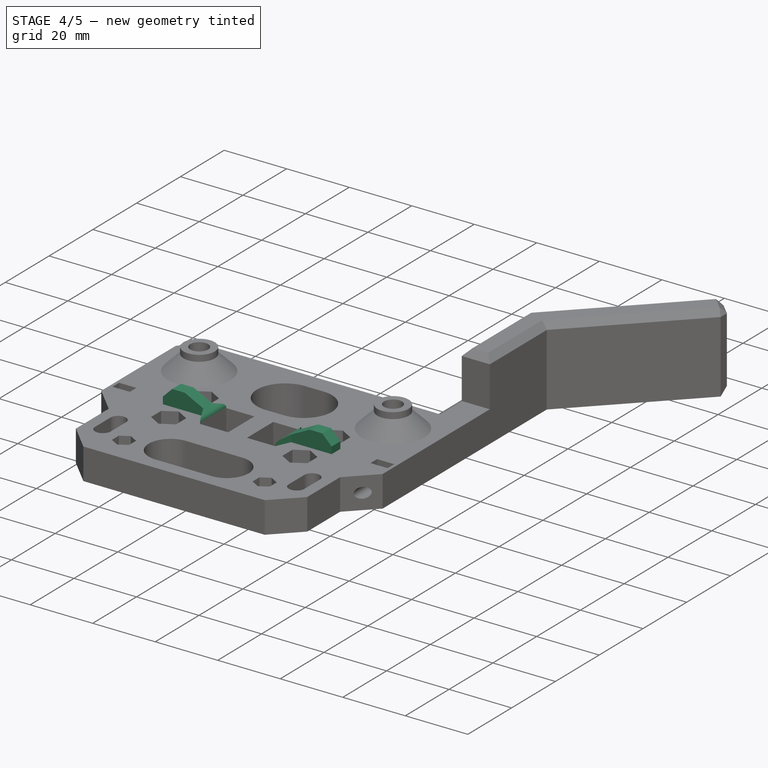
[diagram: stage 4 of 5 — iso view after this stage's code; geometry added in this stage tinted green]
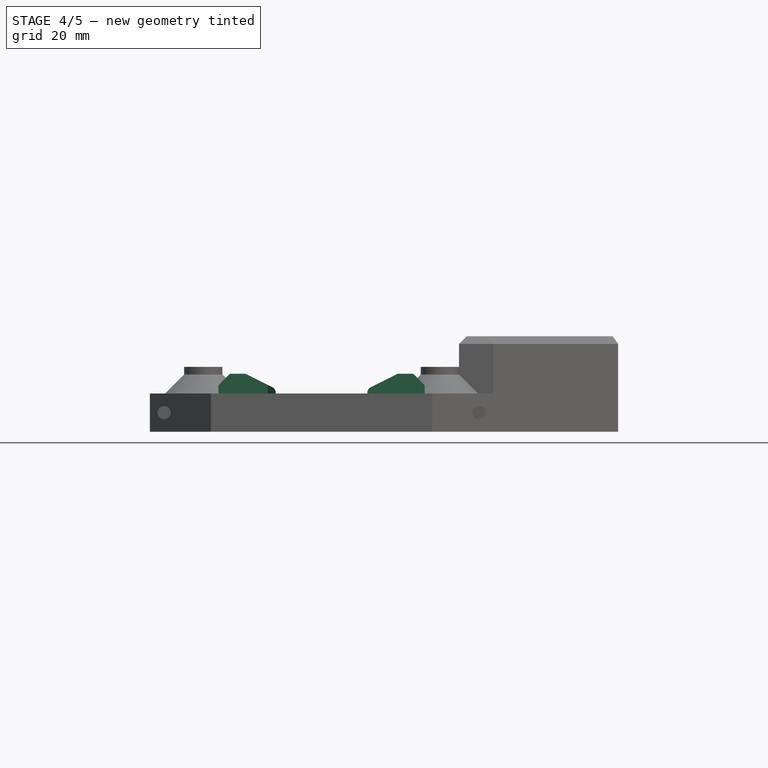
[diagram: stage 4 of 5 — front view after this stage's code; geometry added in this stage tinted green]
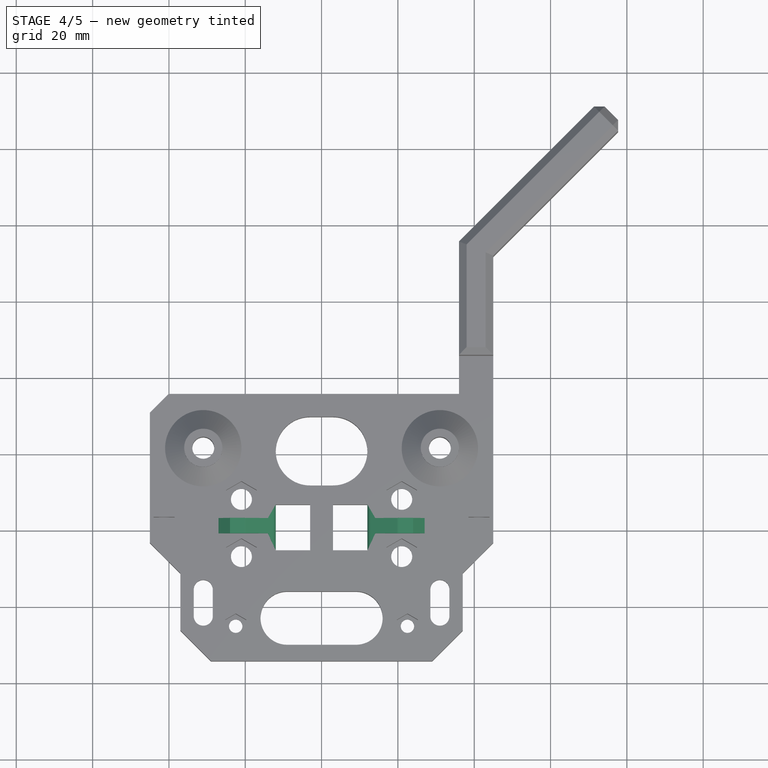
[diagram: stage 4 of 5 — top view after this stage's code; geometry added in this stage tinted green]
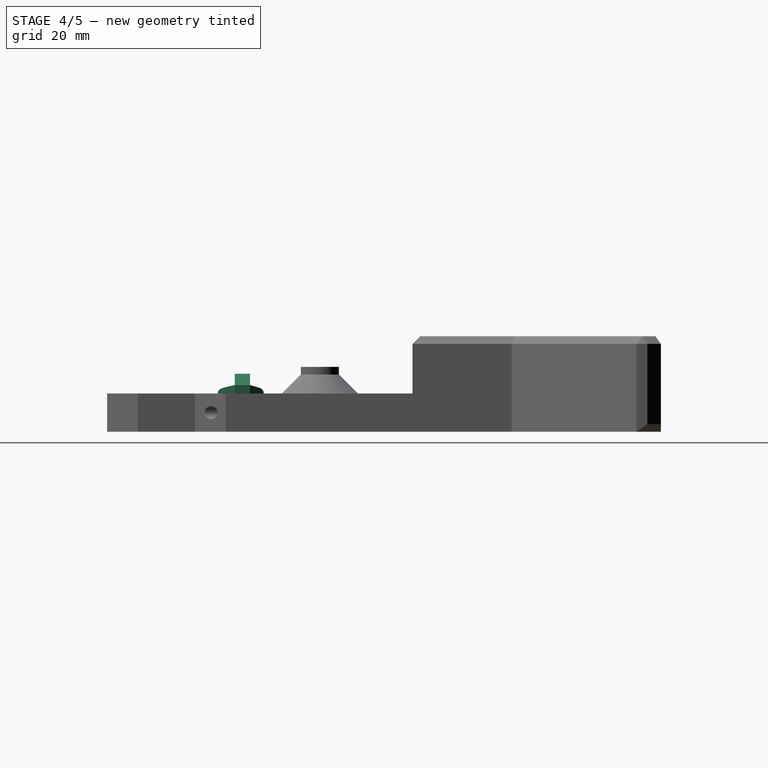
[diagram: stage 4 of 5 — right view after this stage's code; geometry added in this stage tinted green]
FEATURE [Sketcher::SketchObject] Sketch012
  FullyConstrained = true
  MapMode = 5
  Placement = pos=(0,0,10) rot=(0,0,1;0rad)
  Support = -> [DatumPlane]
  sketch-geometry (12):
    g0: LineSegment StartX=-12 StartY=26.75 StartZ=0 EndX=-14.0637 EndY=23.1756 EndZ=0
    g1: LineSegment StartX=-14.0637 StartY=23.1756 StartZ=0 EndX=-27 EndY=23.1756 EndZ=0
    g2: LineSegment StartX=-27 StartY=23.1756 StartZ=0 EndX=-27 EndY=19.1756 EndZ=0
    g3: LineSegment StartX=-27 StartY=19.1756 StartZ=0 EndX=-14.0637 EndY=19.1756 EndZ=0
    g4: LineSegment StartX=-14.0637 StartY=19.1756 StartZ=0 EndX=-12 EndY=14.75 EndZ=0
    g5: LineSegment StartX=-12 StartY=14.75 StartZ=0 EndX=-12 EndY=26.75 EndZ=0
    g6: LineSegment StartX=12 StartY=26.75 StartZ=0 EndX=12 EndY=14.75 EndZ=0
    g7: LineSegment StartX=12 StartY=14.75 StartZ=0 EndX=14.0637 EndY=19.1756 EndZ=0
    g8: LineSegment StartX=14.0637 StartY=19.1756 StartZ=0 EndX=27 EndY=19.1756 EndZ=0
    g9: LineSegment StartX=27 StartY=19.1756 StartZ=0 EndX=27 EndY=23.1756 EndZ=0
    g10: LineSegment StartX=27 StartY=23.1756 StartZ=0 EndX=14.0637 EndY=23.1756 EndZ=0
    g11: LineSegment StartX=14.0637 StartY=23.1756 StartZ=0 EndX=12 EndY=26.75 EndZ=0
  constraints (36):
    c: Coincident(g0,g1)
    c: Horizontal(g1)
    c: Coincident(g1,g2)
    c: Vertical(g2)
    c: Coincident(g2,g3)
    c: Horizontal(g3)
    c: Coincident(g3,g4)
    c: Coincident(g4,g5)
    c: Coincident(g5,g0)
    c: Vertical(g5)
    c: DistanceX(g4,g-1) = 12
    c: DistanceY(g-1,g4) = 14.75
    c: DistanceY(g5,g5) = 12
    c: DistanceY(g2,g2) = 4
    c: Equal(g1,g3)
    c: Angle(g0,g5) = 0.523599
    c: Angle(g5,g4) = 0.436332
    c: DistanceX(g2,g4) = 15
    c: Vertical(g6)
    c: Coincident(g6,g7)
    c: Coincident(g7,g8)
    c: Horizontal(g8)
    c: Coincident(g8,g9)
    c: Coincident(g9,g10)
    c: Horizontal(g10)
    c: Coincident(g10,g11)
    c: Coincident(g11,g6)
    c: Vertical(g9)
    c: Equal(g10,g8)
    c: DistanceY(g6,g6) = 12
    c: DistanceY(g9,g9) = 4
    c: Angle(g6,g11) = 0.523599
    c: Angle(g7,g6) = 0.436332
    c: DistanceX(g-1,g6) = 12
    c: DistanceX(g6,g8) = 15
    c: DistanceY(g-1,g6) = 14.75
FEATURE [PartDesign::Pad] Pad003
  BaseFeature = -> Pocket009
  Direction = (1,1,1)
  Length = 5.2
  Length2 = 100
  Profile = -> Sketch012
  Type = 0
FEATURE [PartDesign::Chamfer] Chamfer003
  Angle = 45
  Base = -> Pad003 [Edge1131,Edge1128]
  BaseFeature = -> Pad003
  ChamferType = 1
  FlipDirection = false
  Size = 4
  Size2 = 8
  SupportTransform = false
FEATURE [PartDesign::Fillet] Fillet001
  Base = -> Chamfer003 [Edge11,Edge9,Edge972,Edge971]
  BaseFeature = -> Chamfer003
  Radius = 1.5
  SupportTransform = false
FEATURE [PartDesign::Chamfer] Chamfer004
  Angle = 45
  Base = -> Fillet001 [Edge113,Edge457]
  BaseFeature = -> Fillet001
  ChamferType = 0
  FlipDirection = false
  Size = 3
  Size2 = 1
  SupportTransform = false
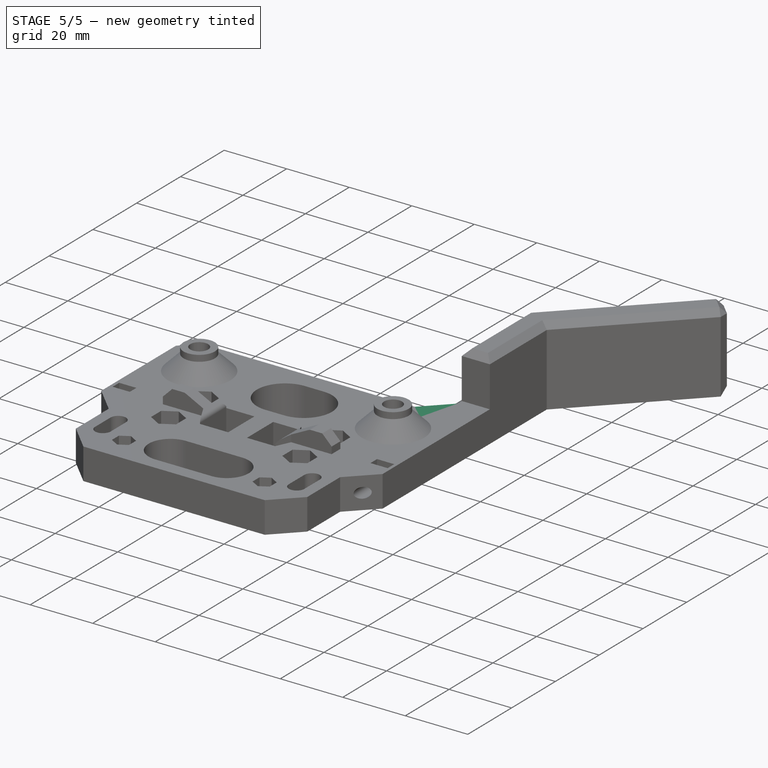
[diagram: stage 5 of 5 — iso view after this stage's code; geometry added in this stage tinted green]
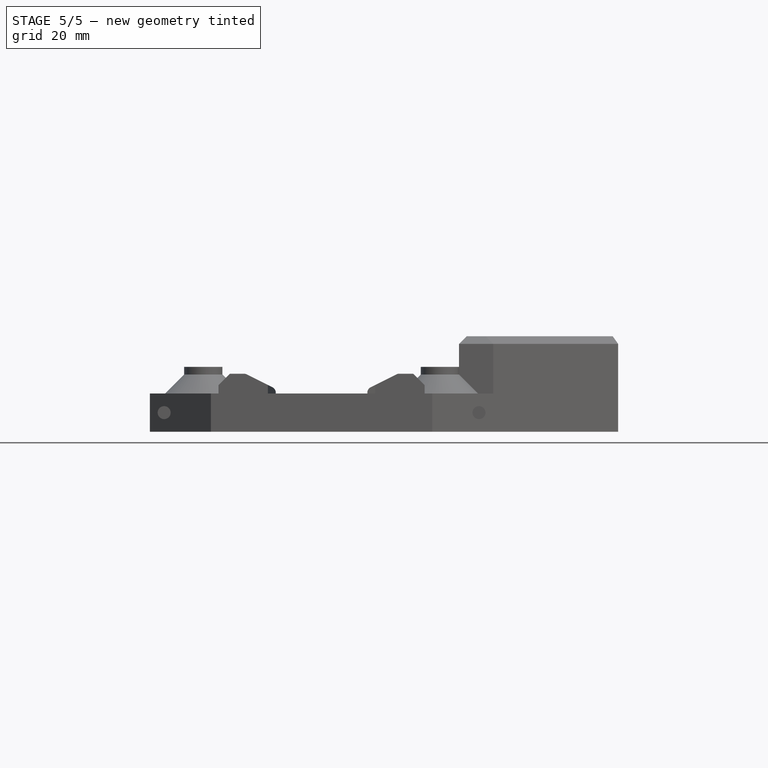
[diagram: stage 5 of 5 — front view after this stage's code; geometry added in this stage tinted green]
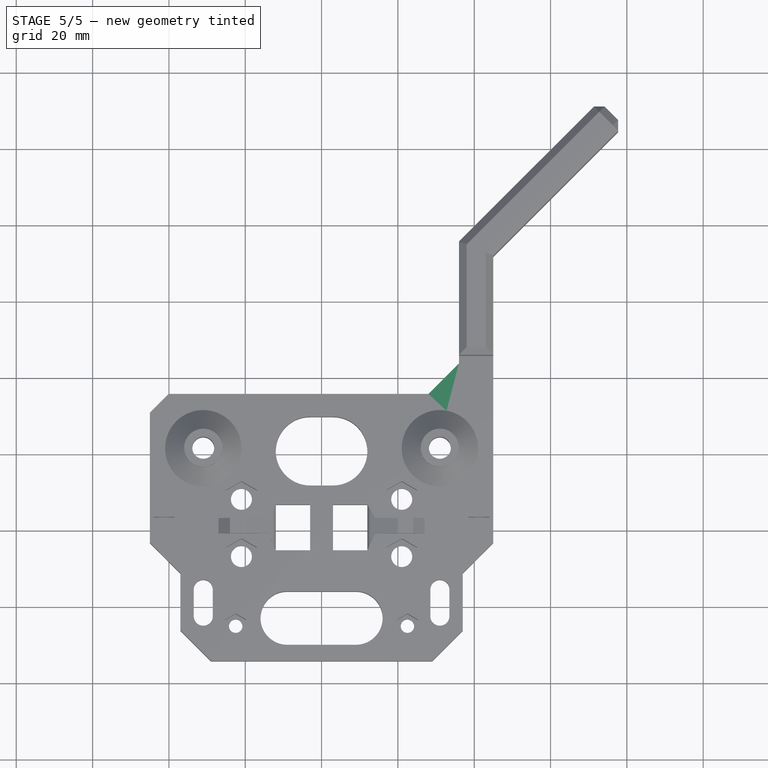
[diagram: stage 5 of 5 — top view after this stage's code; geometry added in this stage tinted green]
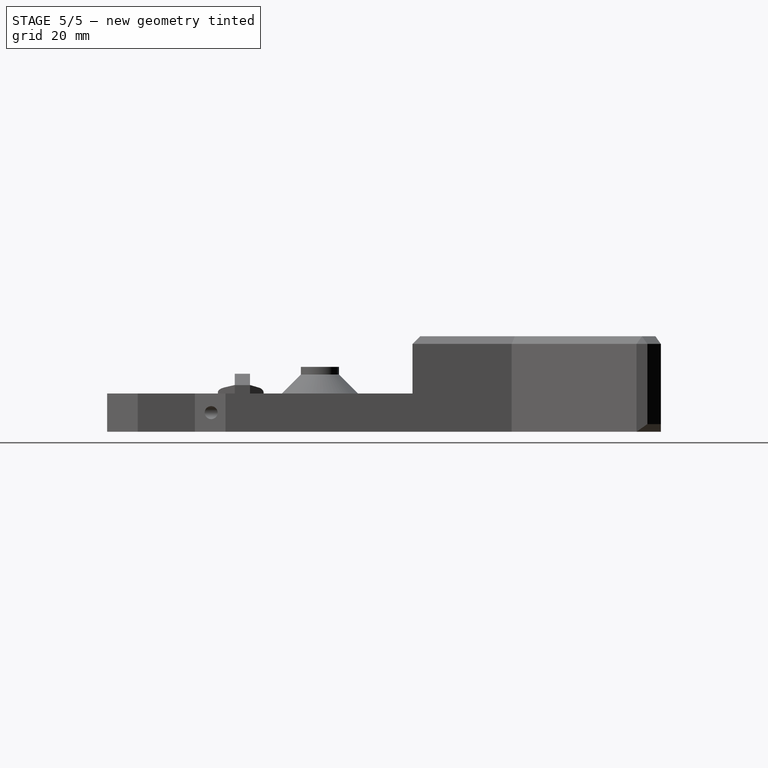
[diagram: stage 5 of 5 — right view after this stage's code; geometry added in this stage tinted green]
FEATURE [Sketcher::SketchObject] Sketch013  label="CableTie1"
  AttachmentOffset = pos=(0,0,-78) rot=(0,0,1;0rad)
  FullyConstrained = true
  MapMode = 5
  Placement = pos=(0,78,1.73e-14) rot=(1,0,0;1.5708rad)
  Support = -> [XZ_Plane]
  sketch-geometry (2):
    g0: Circle CenterX=33 CenterY=12.5 CenterZ=0 NormalX=0 NormalY=0 NormalZ=1 AngleXU=0 Radius=7.5
    g1: Circle CenterX=33 CenterY=12.5 CenterZ=0 NormalX=0 NormalY=0 NormalZ=1 AngleXU=0 Radius=5
  constraints (5):
    c: Coincident(g1,g0)
    c: Diameter(g1) = 10
    c: Diameter(g0) = 15
    c: DistanceY(g-1,g0) = 12.5
    c: DistanceX(g-1,g0) = 33
FEATURE [PartDesign::Pocket] Pocket010  label="pkt_cabletie1"
  BaseFeature = -> Chamfer004
  Length = 5
  Length2 = 100
  Profile = -> Sketch013
  Type = 0
FEATURE [PartDesign::Plane] DatumPlane009
  Length = 106.242
  MapMode = 5
  Placement = pos=(102.509,102.509,0) rot=(0.281085,0.678598,0.678598;2.59356rad)
  ResizeMode = 0
  Support = -> [Pocket010]
  Width = 63.6111
FEATURE [Sketcher::SketchObject] Sketch015  label="CableTie2"
  AttachmentOffset = pos=(0,0,-6) rot=(0,0,1;0rad)
  FullyConstrained = true
  MapMode = 5
  Placement = pos=(98.2659,98.2659,-1e-15) rot=(0.281085,0.678598,0.678598;2.59356rad)
  Support = -> [DatumPlane009]
  sketch-geometry (2):
    g0: Circle CenterX=44 CenterY=12.5 CenterZ=0 NormalX=0 NormalY=0 NormalZ=1 AngleXU=0 Radius=7.5
    g1: Circle CenterX=44 CenterY=12.5 CenterZ=0 NormalX=0 NormalY=0 NormalZ=1 AngleXU=0 Radius=5
  constraints (5):
    c: Coincident(g1,g0)
    c: Diameter(g1) = 10
    c: Diameter(g0) = 15
    c: DistanceY(g-1,g0) = 12.5
    c: DistanceX(g-1,g0) = 44
FEATURE [PartDesign::Pocket] Pocket012  label="pkt_cabletie2"
  BaseFeature = -> Pocket010
  Length = 5
  Length2 = 100
  Profile = -> Sketch015
  Type = 0
FEATURE [Sketcher::SketchObject] Sketch016  label="CableTie3"
  AttachmentOffset = pos=(0,0,-34) rot=(0,0,1;0rad)
  FullyConstrained = true
  MapMode = 5
  Placement = pos=(78.4669,78.4669,-5.7e-15) rot=(0.281085,0.678598,0.678598;2.59356rad)
  Support = -> [DatumPlane009]
  sketch-geometry (2):
    g0: Circle CenterX=44 CenterY=12.5 CenterZ=0 NormalX=0 NormalY=0 NormalZ=1 AngleXU=0 Radius=5
    g1: Circle CenterX=44 CenterY=12.5 CenterZ=0 NormalX=0 NormalY=0 NormalZ=1 AngleXU=0 Radius=7.5
  constraints (5):
    c: Coincident(g1,g0)
    c: Diameter(g1) = 15
    c: Diameter(g0) = 10
    c: DistanceY(g-1,g0) = 12.5
    c: DistanceX(g-1,g0) = 44
FEATURE [PartDesign::Pocket] Pocket013  label="pkt_cabletie3"
  BaseFeature = -> Pocket012
  Length = 5
  Length2 = 100
  Profile = -> Sketch016
  Type = 0
FEATURE [PartDesign::Chamfer] Chamfer005
  Angle = 45
  Base = -> Pocket013 [Edge125]
  BaseFeature = -> Pocket013
  ChamferType = 0
  FlipDirection = false
  Size = 8
  Size2 = 1
  SupportTransform = false
FEATURE [PartDesign::Plane] DatumPlane005  label="PrintPlane"
  Length = 62.7279
  MapMode = 5
  Placement = pos=(0,0,0) rot=(1,0,0;3.14159rad)
  ResizeMode = 0
  Support = -> [Chamfer005]
  Width = 93.7279
FEATURE [PartDesign::Body] Body
  Group = -> [Sketch,Pad,DatumPlane005,DatumPlane,Sketch001,Pad001,Chamfer,Chamfer001,Sketch002,Pocket,Fillet,Sketch005,Pad002,Chamfer002,Sketch007,Pocket004,DatumPlane004,ShapeString001,Pocket006,Sketch008,Hole,DatumPlane007,Sketch011,Pocket009,Sketch012,Pad003,Chamfer003,Fillet001,Chamfer004,Sketch013,Pocket010,DatumPlane009,Sketch015,Pocket012,Sketch016,Pocket013,Chamfer005]
  Origin = -> Origin
  Tip = -> Chamfer005
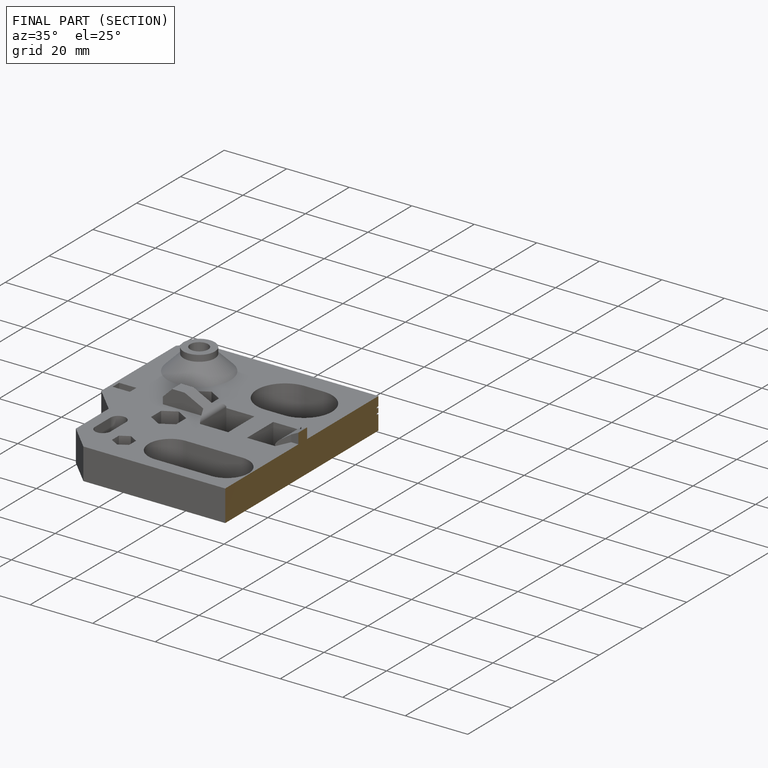
[diagram: finished part — half-section view (interior)]
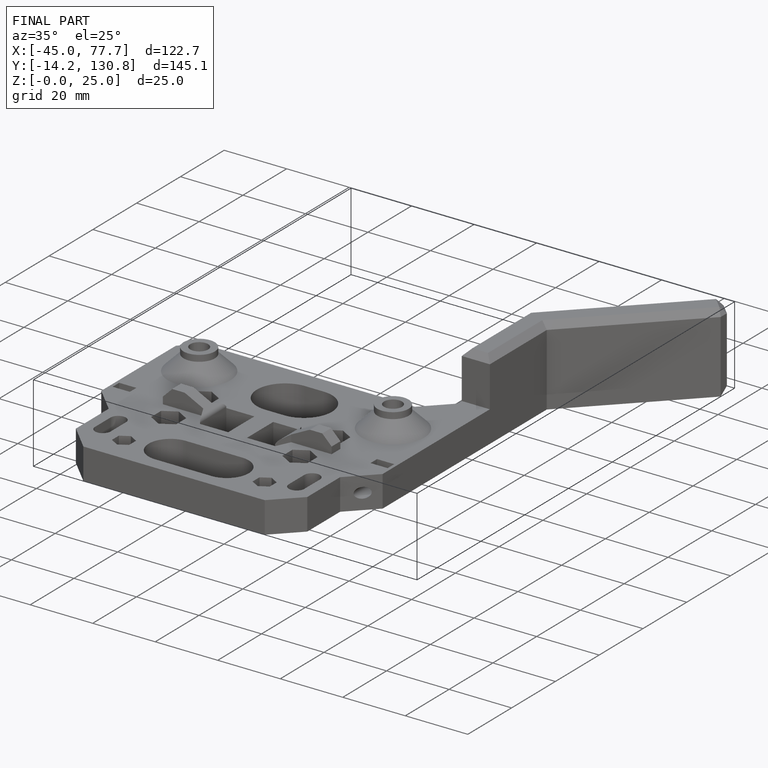
[diagram: finished part — iso view with bounding-box wireframe]
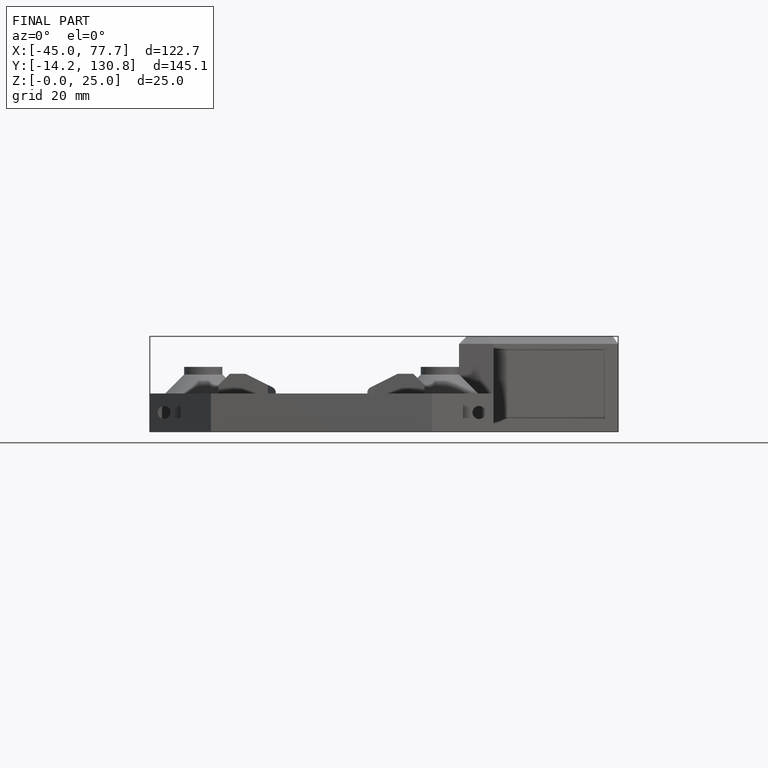
[diagram: finished part — front view with bounding-box wireframe]
